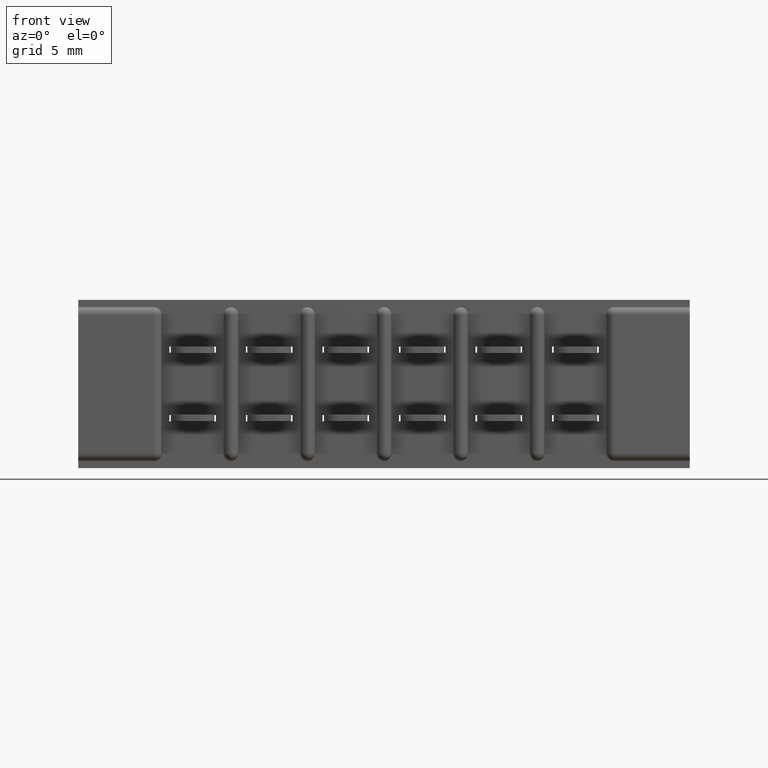
[diagram: clean part render]
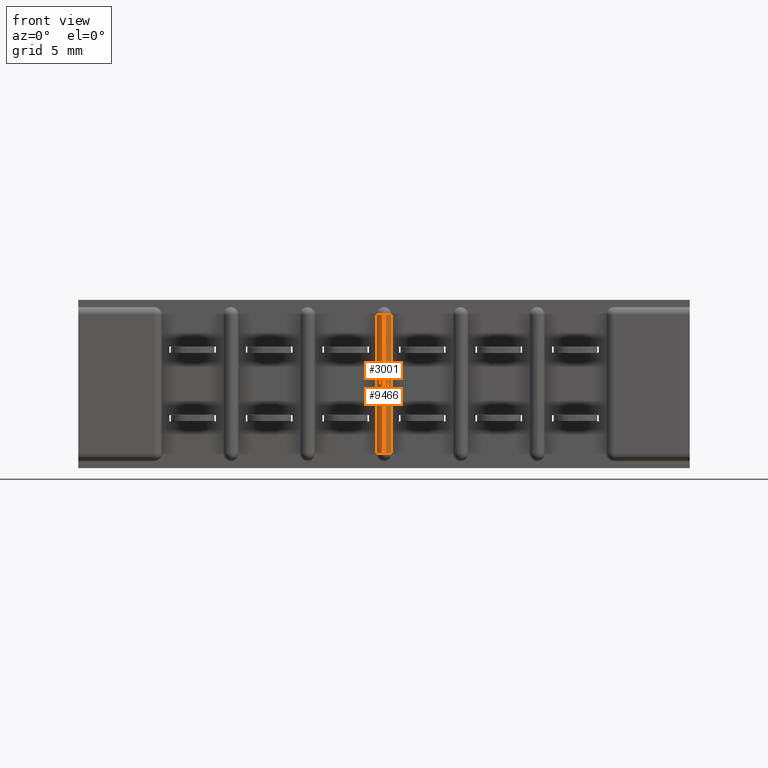
[diagram: same view with one multi-face feature highlighted, each face labeled with its STEP entity id]
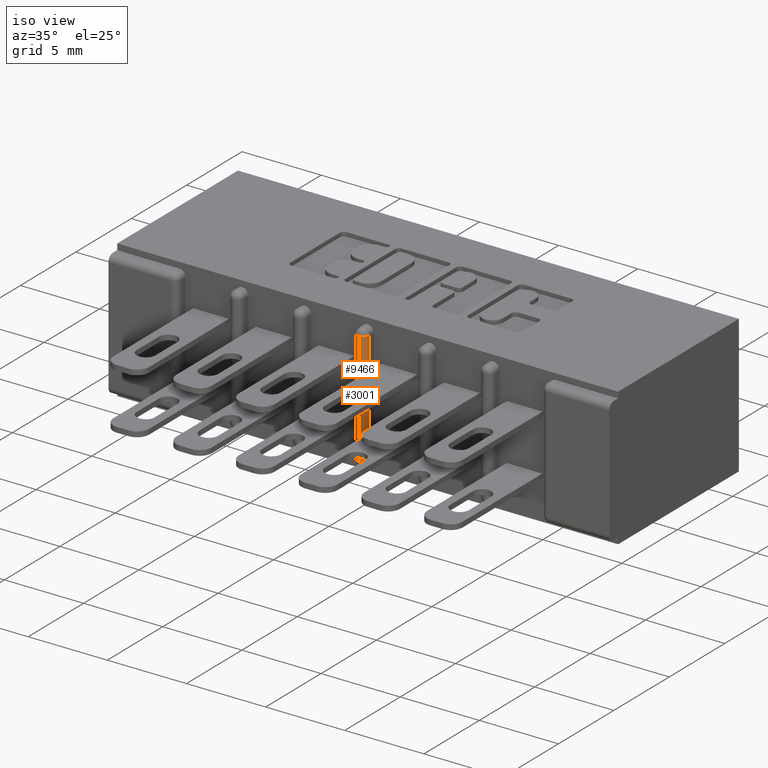
[diagram: same view with one multi-face feature highlighted, each face labeled with its STEP entity id]
A machine part, front view. The highlighted faces form ONE feature: a constant-radius fillet chain: 2 tangent blend faces with common blend radius 0.381 mm. The faces share edges in the B-rep.
A second angle (iso view) of the same feature is appended — it is thin or edge-on in the first view.
Their STEP definitions:
[1] entity #9466 (Cylinder):
#41 = VERTEX_POINT ( 'NONE', #4678 ) ;
#245 = CARTESIAN_POINT ( 'NONE',  ( 0.9210000000000028200, 0.0000000000000000000, -0.3130000000000000600 ) ) ;
#264 = AXIS2_PLACEMENT_3D ( 'NONE', #2718, #9368, #7833 ) ;
#776 = CARTESIAN_POINT ( 'NONE',  ( 0.9210000000000028200, 0.01499999999999997700, -0.4680000000000008600 ) ) ;
#796 = ORIENTED_EDGE ( 'NONE', *, *, #7766, .F. ) ;
#822 = AXIS2_PLACEMENT_3D ( 'NONE', #4305, #10071, #5992 ) ;
#2718 = CARTESIAN_POINT ( 'NONE',  ( 0.9210000000000031500, 0.01499999999999999900, -0.02999999999999995400 ) ) ;
#2722 = EDGE_CURVE ( 'NONE', #10308, #7193, #9256, .T. ) ;
#2773 = EDGE_CURVE ( 'NONE', #7475, #10308, #6927, .T. ) ;
#2844 = DIRECTION ( 'NONE',  ( -6.030569522437654900E-016, 0.0000000000000000000, -1.000000000000000000 ) ) ;
#3236 = CARTESIAN_POINT ( 'NONE',  ( 0.9210000000000028200, 0.0000000000000000000, -0.02999999999999995400 ) ) ;
#3620 = CARTESIAN_POINT ( 'NONE',  ( 0.9360000000000029400, 0.01499999999999997700, -0.3130000000000000600 ) ) ;
#3906 = VECTOR ( 'NONE', #2844, 39.37007874015748100 ) ;
#4023 = DIRECTION ( 'NONE',  ( 1.000000000000000000, 0.0000000000000000000, 0.0000000000000000000 ) ) ;
#4305 = CARTESIAN_POINT ( 'NONE',  ( 0.9210000000000029300, 0.01499999999999999900, -0.3130000000000000600 ) ) ;
#4678 = CARTESIAN_POINT ( 'NONE',  ( 0.9360000000000030500, 0.01499999999999997700, -0.02999999999999996100 ) ) ;
#4732 = ORIENTED_EDGE ( 'NONE', *, *, #8241, .F. ) ;
#5673 = DIRECTION ( 'NONE',  ( 6.030569522437654900E-016, 0.0000000000000000000, 1.000000000000000000 ) ) ;
#5992 = DIRECTION ( 'NONE',  ( 1.000000000000000000, 0.0000000000000000000, 0.0000000000000000000 ) ) ;
#6927 = LINE ( 'NONE', #245, #9022 ) ;
#7105 = CARTESIAN_POINT ( 'NONE',  ( 0.9210000000000028200, 0.0000000000000000000, -0.3130000000000000600 ) ) ;
#7193 = VERTEX_POINT ( 'NONE', #3620 ) ;
#7361 = CYLINDRICAL_SURFACE ( 'NONE', #9023, 0.01499999999999997700 ) ;
#7475 = VERTEX_POINT ( 'NONE', #3236 ) ;
#7766 = EDGE_CURVE ( 'NONE', #7475, #41, #8696, .T. ) ;
#7833 = DIRECTION ( 'NONE',  ( 1.000000000000000000, 0.0000000000000000000, -5.691349986800556800E-016 ) ) ;
#7918 = ORIENTED_EDGE ( 'NONE', *, *, #2773, .T. ) ;
#8241 = EDGE_CURVE ( 'NONE', #41, #7193, #10085, .T. ) ;
#8418 = DIRECTION ( 'NONE',  ( -1.507642380609413700E-016, -0.0000000000000000000, -1.000000000000000000 ) ) ;
#8592 = CARTESIAN_POINT ( 'NONE',  ( 0.9360000000000029400, 0.01499999999999997700, -0.3130000000000000600 ) ) ;
#8696 = CIRCLE ( 'NONE', #264, 0.01499999999999997700 ) ;
#9022 = VECTOR ( 'NONE', #8418, 39.37007874015748100 ) ;
#9023 = AXIS2_PLACEMENT_3D ( 'NONE', #776, #5673, #4023 ) ;
#9036 = ORIENTED_EDGE ( 'NONE', *, *, #2722, .T. ) ;
#9256 = CIRCLE ( 'NONE', #822, 0.01499999999999997700 ) ;
#9368 = DIRECTION ( 'NONE',  ( 5.691349986800556800E-016, 0.0000000000000000000, 1.000000000000000000 ) ) ;
#9466 = ADVANCED_FACE ( 'NONE', ( #9687 ), #7361, .T. ) ;
#9687 = FACE_OUTER_BOUND ( 'NONE', #10019, .T. ) ;
#10019 = EDGE_LOOP ( 'NONE', ( #796, #7918, #9036, #4732 ) ) ;
#10071 = DIRECTION ( 'NONE',  ( -0.0000000000000000000, 0.0000000000000000000, 1.000000000000000000 ) ) ;
#10085 = LINE ( 'NONE', #8592, #3906 ) ;
#10308 = VERTEX_POINT ( 'NONE', #7105 ) ;
[2] entity #3001 (Cylinder):
#92 = CARTESIAN_POINT ( 'NONE',  ( 0.9210000000000028200, 0.01499999999999999900, -0.3130000000000000600 ) ) ;
#182 = AXIS2_PLACEMENT_3D ( 'NONE', #662, #10499, #3913 ) ;
#245 = CARTESIAN_POINT ( 'NONE',  ( 0.9210000000000028200, 0.0000000000000000000, -0.3130000000000000600 ) ) ;
#662 = CARTESIAN_POINT ( 'NONE',  ( 0.9210000000000028200, 0.01499999999999997700, -0.4680000000000008600 ) ) ;
#862 = ORIENTED_EDGE ( 'NONE', *, *, #2773, .F. ) ;
#1139 = LINE ( 'NONE', #2973, #9887 ) ;
#1254 = CARTESIAN_POINT ( 'NONE',  ( 0.9060000000000028000, 0.01499999999999997700, -0.3130000000000000600 ) ) ;
#1573 = DIRECTION ( 'NONE',  ( -2.845674993400278400E-016, -0.0000000000000000000, -1.000000000000000000 ) ) ;
#1616 = DIRECTION ( 'NONE',  ( -1.000000000000000000, 0.0000000000000000000, 2.845674993400278400E-016 ) ) ;
#1739 = EDGE_LOOP ( 'NONE', ( #10375, #862, #7796, #6004 ) ) ;
#2446 = CARTESIAN_POINT ( 'NONE',  ( 0.9060000000000028000, 0.01499999999999997700, -0.02999999999999995000 ) ) ;
#2773 = EDGE_CURVE ( 'NONE', #7475, #10308, #6927, .T. ) ;
#2891 = VERTEX_POINT ( 'NONE', #1254 ) ;
#2973 = CARTESIAN_POINT ( 'NONE',  ( 0.9060000000000028000, 0.01499999999999997700, -0.02999999999999995000 ) ) ;
#3001 = ADVANCED_FACE ( 'NONE', ( #3238 ), #8251, .T. ) ;
#3236 = CARTESIAN_POINT ( 'NONE',  ( 0.9210000000000028200, 0.0000000000000000000, -0.02999999999999995400 ) ) ;
#3238 = FACE_OUTER_BOUND ( 'NONE', #1739, .T. ) ;
#3687 = EDGE_CURVE ( 'NONE', #2891, #6857, #1139, .T. ) ;
#3785 = EDGE_CURVE ( 'NONE', #7475, #6857, #3971, .T. ) ;
#3913 = DIRECTION ( 'NONE',  ( -1.000000000000000000, 0.0000000000000000000, 0.0000000000000000000 ) ) ;
#3971 = CIRCLE ( 'NONE', #7769, 0.01499999999999997700 ) ;
#4133 = DIRECTION ( 'NONE',  ( 0.0000000000000000000, -0.0000000000000000000, -1.000000000000000000 ) ) ;
#4901 = DIRECTION ( 'NONE',  ( -1.000000000000000000, 0.0000000000000000000, 0.0000000000000000000 ) ) ;
#6004 = ORIENTED_EDGE ( 'NONE', *, *, #3687, .F. ) ;
#6049 = EDGE_CURVE ( 'NONE', #10308, #2891, #6050, .T. ) ;
#6050 = CIRCLE ( 'NONE', #9067, 0.01499999999999997700 ) ;
#6203 = DIRECTION ( 'NONE',  ( 1.507642380609413700E-016, 0.0000000000000000000, 1.000000000000000000 ) ) ;
#6440 = CARTESIAN_POINT ( 'NONE',  ( 0.9210000000000028200, 0.01499999999999999900, -0.02999999999999995400 ) ) ;
#6857 = VERTEX_POINT ( 'NONE', #2446 ) ;
#6927 = LINE ( 'NONE', #245, #9022 ) ;
#7105 = CARTESIAN_POINT ( 'NONE',  ( 0.9210000000000028200, 0.0000000000000000000, -0.3130000000000000600 ) ) ;
#7475 = VERTEX_POINT ( 'NONE', #3236 ) ;
#7769 = AXIS2_PLACEMENT_3D ( 'NONE', #6440, #1573, #1616 ) ;
#7796 = ORIENTED_EDGE ( 'NONE', *, *, #3785, .T. ) ;
#8251 = CYLINDRICAL_SURFACE ( 'NONE', #182, 0.01499999999999997700 ) ;
#8418 = DIRECTION ( 'NONE',  ( -1.507642380609413700E-016, -0.0000000000000000000, -1.000000000000000000 ) ) ;
#9022 = VECTOR ( 'NONE', #8418, 39.37007874015748100 ) ;
#9067 = AXIS2_PLACEMENT_3D ( 'NONE', #92, #4133, #4901 ) ;
#9887 = VECTOR ( 'NONE', #6203, 39.37007874015748100 ) ;
#10308 = VERTEX_POINT ( 'NONE', #7105 ) ;
#10375 = ORIENTED_EDGE ( 'NONE', *, *, #6049, .F. ) ;
#10499 = DIRECTION ( 'NONE',  ( -1.507642380609413700E-016, 0.0000000000000000000, -1.000000000000000000 ) ) ;